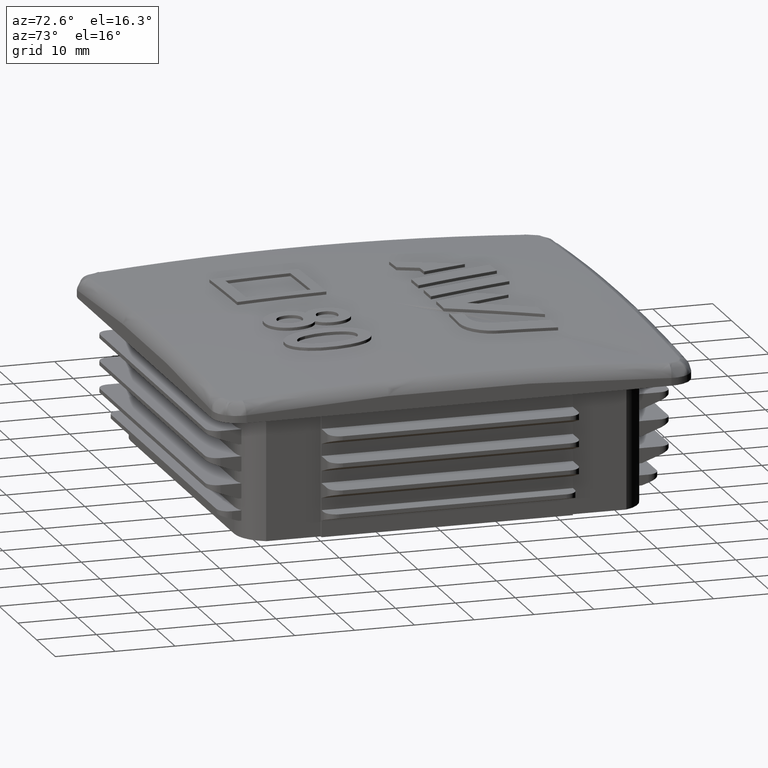
[diagram: clean part render]
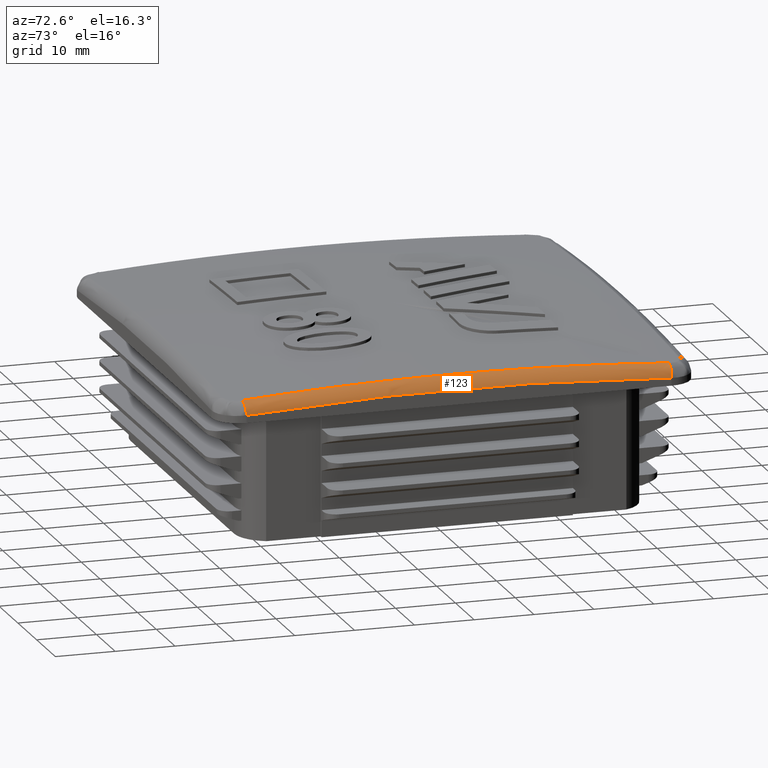
[diagram: same view with one face highlighted and labeled with its STEP entity id]
A machine part, auxiliary view. The second image highlights one B-rep face of the part: STEP entity #123.
In plain terms, the highlighted face is a freeform B-spline surface patch.
Its self-contained STEP definition (entity closure, byte-faithful):
#123 = ADVANCED_FACE( '', ( #434 ), #435, .T. );
#434 = FACE_OUTER_BOUND( '', #2505, .T. );
#435 = ( B_SPLINE_SURFACE( 3, 2, ( ( #2507, #2508, #2509 ), ( #2510, #2511, #2512 ), ( #2513, #2514, #2515 ), ( #2516, #2517, #2518 ), ( #2519, #2520, #2521 ), ( #2522, #2523, #2524 ), ( #2525, #2526, #2527 ), ( #2528, #2529, #2530 ), ( #2531, #2532, #2533 ), ( #2534, #2535, #2536 ), ( #2537, #2538, #2539 ), ( #2540, #2541, #2542 ), ( #2543, #2544, #2545 ), ( #2546, #2547, #2548 ), ( #2549, #2550, #2551 ), ( #2552, #2553, #2554 ) ), .UNSPECIFIED., .F., .F., .F. )B_SPLINE_SURFACE_WITH_KNOTS( ( 4, 2, 2, 2, 2, 2, 2, 4 ), ( 3, 3 ), ( -6.93889390390723E-018, 0.0177531865383753, 0.0355063730767507, 0.0443829663459383, 0.0488212629805322, 0.0510404112978291, 0.0532595596151260, 0.0710127461535013 ), ( 0.000000000000000, 1.00000000000000 ), .UNSPECIFIED. )RATIONAL_B_SPLINE_SURFACE( ( ( 1.00000000000000, 0.733583874251396, 1.00000000000000 ), ( 1.00000000000000, 0.733583493132214, 1.00000000000000 ), ( 1.00000000000000, 0.733583048589951, 1.00000000000000 ), ( 1.00000000000000, 0.733582310966413, 1.00000000000000 ), ( 1.00000000000000, 0.733582038347459, 1.00000000000000 ), ( 1.00000000000000, 0.733582038347459, 1.00000000000000 ), ( 1.00000000000000, 0.733582102284399, 1.00000000000000 ), ( 1.00000000000000, 0.733582274011680, 1.00000000000000 ), ( 1.00000000000000, 0.733582343414190, 1.00000000000000 ), ( 1.00000000000000, 0.733582460732689, 1.00000000000000 ), ( 1.00000000000000, 0.733582502033167, 1.00000000000000 ), ( 1.00000000000000, 0.733582588149922, 1.00000000000000 ), ( 1.00000000000000, 0.733582632967675, 1.00000000000000 ), ( 1.00000000000000, 0.733583048261067, 1.00000000000000 ), ( 1.00000000000000, 0.733583493175733, 1.00000000000000 ), ( 1.00000000000000, 0.733583874251396, 1.00000000000000 ) ) )BOUNDED_SURFACE(  )REPRESENTATION_ITEM( '' )GEOMETRIC_REPRESENTATION_ITEM(  )SURFACE(  ) );
#2505 = EDGE_LOOP( '', ( #3824, #3825, #3826, #3827 ) );
#2507 = CARTESIAN_POINT( '', ( 40.0000000000000, -35.5000000000000, 23.2784936224967 ) );
#2508 = CARTESIAN_POINT( '', ( 40.0000000000000, -35.6324391062303, 25.1265728057928 ) );
#2509 = CARTESIAN_POINT( '', ( 38.1525812022468, -35.6425429652568, 25.2675638776100 ) );
#2510 = CARTESIAN_POINT( '', ( 40.0000000000000, -29.5892358129730, 23.7020773807898 ) );
#2511 = CARTESIAN_POINT( '', ( 40.0000000000206, -29.6996219112563, 25.5517390708259 ) );
#2512 = CARTESIAN_POINT( '', ( 38.1525789334649, -29.7080431793545, 25.6928487768223 ) );
#2513 = CARTESIAN_POINT( '', ( 40.0000000000000, -23.6764586290392, 24.0194960859497 ) );
#2514 = CARTESIAN_POINT( '', ( 40.0000000000000, -23.7647850001124, 25.8703444069093 ) );
#2515 = CARTESIAN_POINT( '', ( 38.1525763567035, -23.7715232341785, 26.0115422545511 ) );
#2516 = CARTESIAN_POINT( '', ( 40.0000000000000, -11.8468976020582, 24.4428128111167 ) );
#2517 = CARTESIAN_POINT( '', ( 40.0000000000000, -11.8910918147866, 26.2952444223447 ) );
#2518 = CARTESIAN_POINT( '', ( 38.1525720278608, -11.8944631912377, 26.4365590469270 ) );
#2519 = CARTESIAN_POINT( '', ( 40.0000000000000, -5.93011310884948, 24.5487116816014 ) );
#2520 = CARTESIAN_POINT( '', ( 40.0000000000000, -5.95223500609988, 26.4015398212528 ) );
#2521 = CARTESIAN_POINT( '', ( 38.1525704297906, -5.95392257976513, 26.5428832140351 ) );
#2522 = CARTESIAN_POINT( '', ( 40.0000000000000, 2.94806972634460, 24.5489141089422 ) );
#2523 = CARTESIAN_POINT( '', ( 40.0000000000000, 2.95906730672395, 26.4017430063321 ) );
#2524 = CARTESIAN_POINT( '', ( 38.1525704270208, 2.95990625949638, 26.5430864543753 ) );
#2525 = CARTESIAN_POINT( '', ( 40.0000000000000, 5.90796514412354, 24.5225340876381 ) );
#2526 = CARTESIAN_POINT( '', ( 39.9999999999897, 5.93000442502162, 26.3752642264643 ) );
#2527 = CARTESIAN_POINT( '', ( 38.1525708031583, 5.93168569670580, 26.5166004891413 ) );
#2528 = CARTESIAN_POINT( '', ( 40.0000000000000, 10.3485611198474, 24.4432326477275 ) );
#2529 = CARTESIAN_POINT( '', ( 40.0000000000051, 10.3871660608863, 26.2956660129681 ) );
#2530 = CARTESIAN_POINT( '', ( 38.1525718109814, 10.3901110728421, 26.4369805696371 ) );
#2531 = CARTESIAN_POINT( '', ( 40.0000000000000, 11.8288852611354, 24.4101765183121 ) );
#2532 = CARTESIAN_POINT( '', ( 40.0000000000000, 11.8730126059227, 26.2624861870711 ) );
#2533 = CARTESIAN_POINT( '', ( 38.1525722182800, 11.8763789080963, 26.4037916846753 ) );
#2534 = CARTESIAN_POINT( '', ( 40.0000000000000, 14.0495599099270, 24.3506476186744 ) );
#2535 = CARTESIAN_POINT( '', ( 40.0000000000000, 14.1019716572054, 26.2027345683612 ) );
#2536 = CARTESIAN_POINT( '', ( 38.1525729067766, 14.1059699632040, 26.3440237131190 ) );
#2537 = CARTESIAN_POINT( '', ( 40.0000000000000, 14.7898161994914, 24.3291471755358 ) );
#2538 = CARTESIAN_POINT( '', ( 39.9999999999974, 14.8449895469433, 26.1811536897542 ) );
#2539 = CARTESIAN_POINT( '', ( 38.1525731491564, 14.8491985322793, 26.3224369228410 ) );
#2540 = CARTESIAN_POINT( '', ( 40.0000000000000, 16.2703916331607, 24.2828291577050 ) );
#2541 = CARTESIAN_POINT( '', ( 40.0000000000026, 16.3310884483019, 26.1346624057200 ) );
#2542 = CARTESIAN_POINT( '', ( 38.1525736545475, 16.3357188154058, 26.2759328888524 ) );
#2543 = CARTESIAN_POINT( '', ( 40.0000000000000, 17.0107436807877, 24.2580102889750 ) );
#2544 = CARTESIAN_POINT( '', ( 40.0000000000000, 17.0742024861938, 26.1097507014265 ) );
#2545 = CARTESIAN_POINT( '', ( 38.1525739175670, 17.0790435650931, 26.2510143459604 ) );
#2546 = CARTESIAN_POINT( '', ( 40.0000000000000, 23.6728964153207, 24.0197512161932 ) );
#2547 = CARTESIAN_POINT( '', ( 40.0000000000000, 23.7612094956672, 25.8706004907848 ) );
#2548 = CARTESIAN_POINT( '', ( 38.1525763547849, 23.7679467156696, 26.0117984094446 ) );
#2549 = CARTESIAN_POINT( '', ( 40.0000000000000, 29.5892360808475, 23.7020773620851 ) );
#2550 = CARTESIAN_POINT( '', ( 40.0000000000000, 29.6996221801675, 25.5517390519806 ) );
#2551 = CARTESIAN_POINT( '', ( 38.1525789334302, 29.7080434483058, 25.6928487575511 ) );
#2552 = CARTESIAN_POINT( '', ( 40.0000000000000, 35.5000000000000, 23.2784936224967 ) );
#2553 = CARTESIAN_POINT( '', ( 40.0000000000000, 35.6324391062303, 25.1265728057928 ) );
#2554 = CARTESIAN_POINT( '', ( 38.1525812022468, 35.6425429652568, 25.2675638776101 ) );
#3824 = ORIENTED_EDGE( '', *, *, #5788, .T. );
#3825 = ORIENTED_EDGE( '', *, *, #5789, .F. );
#3826 = ORIENTED_EDGE( '', *, *, #5772, .F. );
#3827 = ORIENTED_EDGE( '', *, *, #5790, .F. );
#5772 = EDGE_CURVE( '', #6602, #6603, #6604, .T. );
#5788 = EDGE_CURVE( '', #6628, #6629, #6630, .T. );
#5789 = EDGE_CURVE( '', #6603, #6629, #6631, .T. );
#5790 = EDGE_CURVE( '', #6628, #6602, #6632, .T. );
#6602 = VERTEX_POINT( '', #8913 );
#6603 = VERTEX_POINT( '', #8914 );
#6604 = CIRCLE( '', #8915, 2.00000000000000 );
#6628 = VERTEX_POINT( '', #9017 );
#6629 = VERTEX_POINT( '', #9018 );
#6630 = CIRCLE( '', #9019, 2.00000000000000 );
#6631 = B_SPLINE_CURVE_WITH_KNOTS( '', 3, ( #9020, #9021, #9022, #9023, #9024, #9025, #9026, #9027, #9028, #9029, #9030, #9031, #9032, #9033, #9034, #9035, #9036, #9037, #9038, #9039, #9040 ), .UNSPECIFIED., .F., .F., ( 4, 1, 1, 1, 1, 2, 1, 2, 2, 2, 2, 2, 4 ), ( 0.000000000000000, 0.00891204744112023, 0.0178240948822405, 0.0267361423233607, 0.0356481897644809, 0.0445602372056012, 0.0490162609261613, 0.0512442727864413, 0.0534722846467214, 0.0623843320878416, 0.0646123439481217, 0.0668403558084017, 0.0712963795289618 ), .UNSPECIFIED. );
#6632 = B_SPLINE_CURVE_WITH_KNOTS( '', 3, ( #9041, #9042, #9043, #9044, #9045, #9046, #9047, #9048, #9049, #9050, #9051, #9052, #9053, #9054, #9055 ), .UNSPECIFIED., .F., .F., ( 4, 1, 2, 2, 1, 1, 1, 1, 1, 1, 4 ), ( 0.000000000000000, 0.00888728799719375, 0.0177745759943875, 0.0199963979936859, 0.0222182199929844, 0.0266618639915812, 0.0355491519887749, 0.0444364399859687, 0.0533237279831624, 0.0622110159803561, 0.0710983039775498 ), .UNSPECIFIED. );
#8913 = CARTESIAN_POINT( '', ( 40.0000000000000, -35.5000000000000, 23.2784936224966 ) );
#8914 = CARTESIAN_POINT( '', ( 38.1525812022468, -35.6425429652568, 25.2675638776100 ) );
#8915 = AXIS2_PLACEMENT_3D( '', #11503, #11504, #11505 );
#9017 = CARTESIAN_POINT( '', ( 40.0000000000000, 35.5000000000000, 23.2784936224966 ) );
#9018 = CARTESIAN_POINT( '', ( 38.1525812022468, 35.6425429652568, 25.2675638776100 ) );
#9019 = AXIS2_PLACEMENT_3D( '', #11525, #11526, #11527 );
#9020 = CARTESIAN_POINT( '', ( 38.1525812022468, -35.6425429652568, 25.2675638776100 ) );
#9021 = CARTESIAN_POINT( '', ( 38.1525800678731, -32.6753563933838, 25.4802017894293 ) );
#9022 = CARTESIAN_POINT( '', ( 38.1525776778237, -26.7399731791790, 25.8521714590949 ) );
#9023 = CARTESIAN_POINT( '', ( 38.1525740730126, -17.8338753672154, 26.2505885729254 ) );
#9024 = CARTESIAN_POINT( '', ( 38.1525711944306, -8.92475889483127, 26.4896968229485 ) );
#9025 = CARTESIAN_POINT( '', ( 38.1525700509352, -0.0126251849794911, 26.5695713050616 ) );
#9026 = CARTESIAN_POINT( '', ( 38.1525708030281, 5.93080981407860, 26.5166105360877 ) );
#9027 = CARTESIAN_POINT( '', ( 38.1525718107284, 10.3891419046088, 26.4370006734310 ) );
#9028 = CARTESIAN_POINT( '', ( 38.1525724216234, 12.6184969220453, 26.3872227945948 ) );
#9029 = CARTESIAN_POINT( '', ( 38.1525731488051, 14.8481357186087, 26.3224685606972 ) );
#9030 = CARTESIAN_POINT( '', ( 38.1525736541655, 16.3346246879594, 26.2759687260195 ) );
#9031 = CARTESIAN_POINT( '', ( 38.1525739171685, 17.0779308960104, 26.2510524670495 ) );
#9032 = CARTESIAN_POINT( '', ( 38.1525752711332, 20.7939594902875, 26.1181641021271 ) );
#9033 = CARTESIAN_POINT( '', ( 38.1525764739116, 23.7655505570712, 25.9852632045671 ) );
#9034 = CARTESIAN_POINT( '', ( 38.1525779726634, 27.4784996834336, 25.7859004843493 ) );
#9035 = CARTESIAN_POINT( '', ( 38.1525782725107, 28.2210125176076, 25.7443659864288 ) );
#9036 = CARTESIAN_POINT( '', ( 38.1525788698770, 29.7058841821713, 25.6579726168487 ) );
#9037 = CARTESIAN_POINT( '', ( 38.1525791673929, 30.4482314886814, 25.6131143732627 ) );
#9038 = CARTESIAN_POINT( '', ( 38.1525800533611, 32.6749228450167, 25.4735601418385 ) );
#9039 = CARTESIAN_POINT( '', ( 38.1525806350600, 34.1589498630594, 25.3738828203524 ) );
#9040 = CARTESIAN_POINT( '', ( 38.1525812022468, 35.6425429652568, 25.2675638776101 ) );
#9041 = CARTESIAN_POINT( '', ( 40.0000000000000, 35.5000000000000, 23.2784936224967 ) );
#9042 = CARTESIAN_POINT( '', ( 40.0000000000000, 32.5446179210879, 23.4902855005925 ) );
#9043 = CARTESIAN_POINT( '', ( 40.0000000000000, 26.6310654655273, 23.8609016986984 ) );
#9044 = CARTESIAN_POINT( '', ( 40.0000000000000, 20.7119396444146, 24.1256441374348 ) );
#9045 = CARTESIAN_POINT( '', ( 40.0000000000000, 17.0107436807884, 24.2580102889737 ) );
#9046 = CARTESIAN_POINT( '', ( 40.0000000000000, 16.2703916331602, 24.2828291576941 ) );
#9047 = CARTESIAN_POINT( '', ( 40.0000000000000, 14.7898161994918, 24.3291471755467 ) );
#9048 = CARTESIAN_POINT( '', ( 40.0000000000000, 12.5690473317735, 24.3936484536231 ) );
#9049 = CARTESIAN_POINT( '', ( 40.0000000000000, 7.38791285300779, 24.5093440768944 ) );
#9050 = CARTESIAN_POINT( '', ( 40.0000000000000, -0.0118256916140831, 24.5752941393508 ) );
#9051 = CARTESIAN_POINT( '', ( 40.0000000000000, -8.88850510891237, 24.4957492360573 ) );
#9052 = CARTESIAN_POINT( '', ( 40.0000000000000, -17.7621792342553, 24.2576008541520 ) );
#9053 = CARTESIAN_POINT( '', ( 40.0000000000000, -26.6328466483068, 23.8607740885566 ) );
#9054 = CARTESIAN_POINT( '', ( 40.0000000000000, -32.5446175738294, 23.4902855254781 ) );
#9055 = CARTESIAN_POINT( '', ( 40.0000000000000, -35.5000000000000, 23.2784936224966 ) );
#11503 = CARTESIAN_POINT( '', ( 38.0000000000000, -35.5000000000000, 23.2784936224967 ) );
#11504 = DIRECTION( '', ( 0.000000000000000, -0.997442047424238, -0.0714798015536142 ) );
#11505 = DIRECTION( '', ( 0.000000000000000, 0.0714798015536142, -0.997442047424238 ) );
#11525 = CARTESIAN_POINT( '', ( 38.0000000000000, 35.5000000000000, 23.2784936224966 ) );
#11526 = DIRECTION( '', ( -8.83483539919178E-016, -0.997442047424238, 0.0714798015536142 ) );
#11527 = DIRECTION( '', ( 0.000000000000000, -0.0714798015536142, -0.997442047424238 ) );